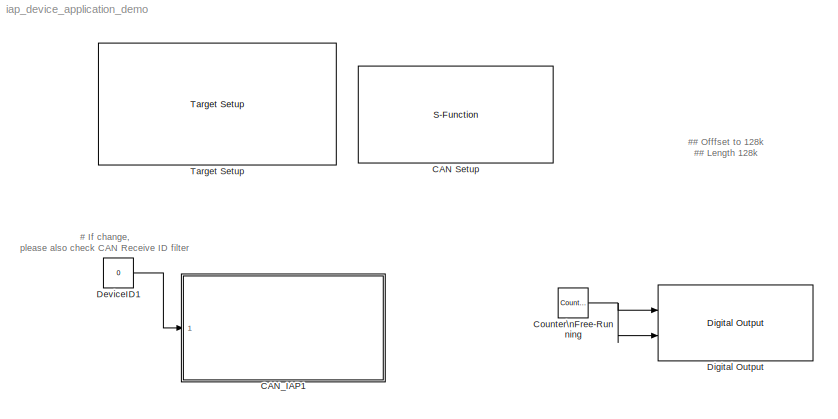
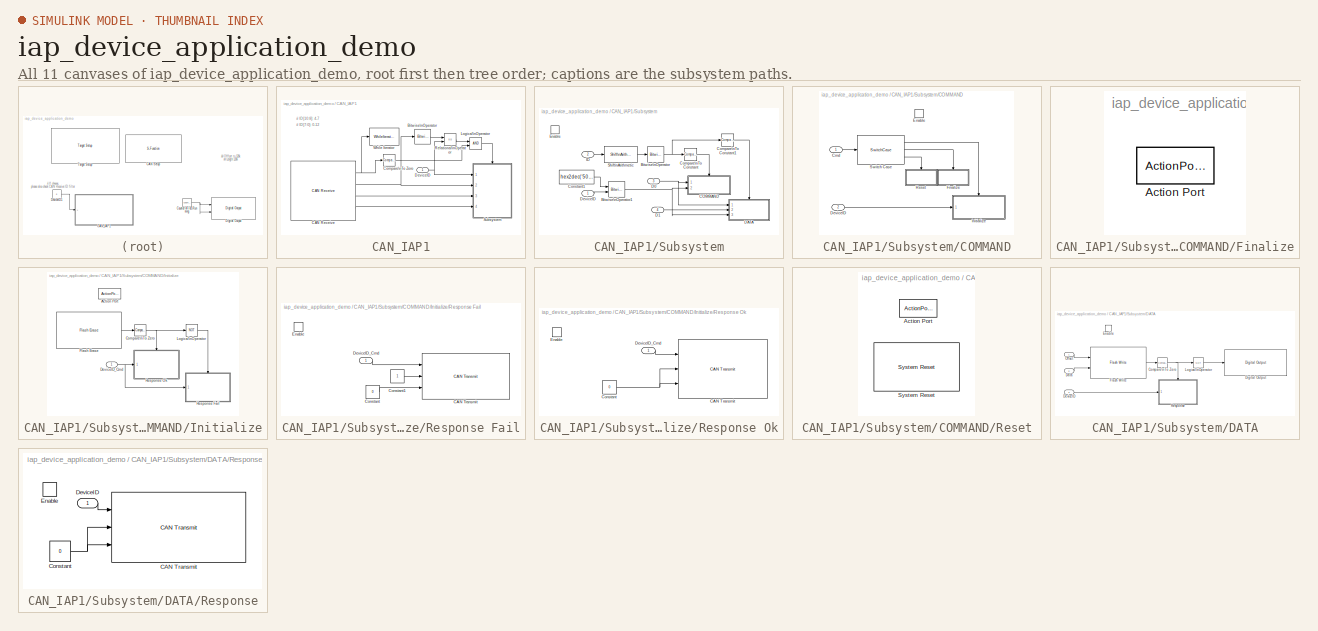
[diagram: thumbnail index - all 11 canvases of the model, root first then tree order]
MODEL iap_device_application_demo
KIND model
CONFIG PreLoadFcn = waijung.modelPreload; % Required for working with Waijung Blockset. Do not remove.
BLOCK [S-Function] CAN Setup
  EnableBusSupport = off
  FunctionName = stm32f4_can
  MaskCallbackString = |stm32f4_can_callback('canmodule');|stm32f4_can_callback('advance');|stm32f4_can_callback('bitrate_select');||stm32f4_can_callback('timingconf');|stm32f4_can_callback('timingconf');|stm32f4_can_callback('timingconf');|stm32f4_can_callback('timingconf');|stm32f4_can_callback('timingconf');||stm32f4_can_callback('remaptxpin');|stm32f4_can_callback('remaprxpin');|stm32f4_can_callback('sampletime');|s...<+82ch>
  MaskDescription = This block setups CAN Module.
  MaskDisplay = text(0.5, 0.5, 'CAN1_Setup\\nSpeed (bps): 125000\\nTx/Rx pin: B9/B8','ver','middle','hor','center');
  MaskEnableString = on,on,on,on,on,on,on,on,on,off,off,on,on,on,off,off,on,on,on,on,on,on,on,on,on,on,on,on
  MaskHelp = web(fullfile(waijungdocroot,'stm32f4_can_setup.htm'), '-browser')
  MaskIconFrame = on
  MaskIconOpaque = on
  MaskIconRotate = none
  MaskIconUnits = normalized
  MaskInitialization = stm32f4_can_callback('init');
  MaskPortRotate = default
  MaskPromptString = Configuration|CAN Module|Advance configuration|Baud rate (bps)|Resync Jump Width (SJW)|Bit segment 1 (BS1) + PROP_SEG|Bit segment 2 (BS2)|Adjust|Baud rate prescaler (BRP)|Baud rate (bps)|Time Quantum (Second), tq|CAN Tx pin|CAN Rx pin|Sample time (sec)|Compiled sample time (sec) in string|BlockID|Input port|Input port label|Output port|Output port label|Compatibility (Reserved for future use)|Conf...<+104ch>
  MaskSelfModifiable = on
  MaskStyleString = popup(Setup),popup(1|2),checkbox,popup(125000|250000|500000|1000000),popup(1tq|2tq|3tq|4tq),popup(1tq|2tq|3tq|4tq|5tq|6tq|7tq|8tq|9tq|10tq|11tq|12tq|13tq|14tq|15tq|16tq),popup(1tq|2tq|3tq|4tq|5tq|6tq|7tq|8tq),popup(Prescaler|Baudrate),edit,edit,edit,popup(Not used|A12|B9|D1|H13),popup(Not used|A11|B8|D0|I9),edit,edit,edit,edit,edit,edit,edit,edit,edit,edit,edit,edit,edit,edit,edit
  MaskTabNameString = ,,,,,,,,,,,,,,,,,,,,,,,,,,,
  MaskToolTipString = on,on,on,on,on,on,on,on,on,on,on,on,on,on,on,on,on,on,on,on,on,on,on,on,on,on,on,on
  MaskTunableValueString = off,off,off,off,off,off,off,off,off,off,off,off,off,off,off,off,off,off,off,off,off,off,off,off,off,off,off,off
  MaskType = stm32f4_can
  MaskValueString = Setup|1|on|125000|1tq|14tq|6tq|Prescaler|16|125000|3.8095e-007|B9|B8|inf|0.001|CANSetup|[]|{}|[]|{}|0|[\"125000\",\"16\",\"B\",\"9\",\"B\",\"8\",\"1tq\",\"14tq\",\"6tq\",\"ENABLE\"]|16|B|9|B|8|1
  MaskVarAliasString = ,,,,,,,,,,,,,,,,,,,,,,,,,,,
  MaskVariables = conf=&1;canmodule=&2;advance=&3;bitrate_select=&4;sjw=&5;bs1=&6;bs2=&7;timingconf=&8;brp=@9;bitrate=@10;tq=&11;remaptxpin=&12;remaprxpin=&13;sampletime=@14;sampletimestr=&15;blockid=&16;inputarray=@17;inputlabelarray=&18;outputarray=@19;outputlabelarray=&20;compat=&21;confstr=&22;presc=&23;txportstr=&24;txpinstr=&25;rxportstr=&26;rxpinstr=&27;lastmodule=&28;
  MaskVisibilityString = off,on,on,off,on,on,on,on,on,on,on,on,on,on,off,off,off,off,off,off,off,off,off,off,off,off,off,off
  Parameters = conf,canmodule,0,inputarray,outputarray,'','',confstr,sampletime,sampletimestr,blockid
  Ports = []
BLOCK [SubSystem] CAN_IAP1
  FunctionWithSeparateData = off
  MaskHideContents = off
  MinAlgLoopOccurrences = off
  Opaque = off
  Ports = [1]
  PropExecContextOutsideSubsystem = off
  RTWSystemCode = Auto
  RequestExecContextInheritance = off
  TreatAsAtomicUnit = on
BLOCK [Reference] CAN_IAP1/Bitwise\nOperator  REF=simulink/Logic and Bit\nOperations/Bitwise\nOperator
  BitMask = 255
  BitMaskRealWorld = Stored Integer
  NumInputPorts = 1
  Ports = [1, 1]
  SourceBlock = simulink/Logic and Bit\nOperations/Bitwise\nOperator
  SourceType = Bitwise Operator
  UseBitMask = on
  logicop = AND
BLOCK [Reference] CAN_IAP1/CAN Receive  REF=stm32f4_canbus_lib/CAN Receive
  Ports = [0, 4]
  SourceBlock = stm32f4_canbus_lib/CAN Receive
  SourceType = stm32f4_can
  blockid = CAN_IAP1CANReceive
  buffersize = 32
  canmodule = 1
  compat = 0
  conf = Rx
  confstr = [\"Standard\",\"Mask\",\"1024\",\"1264\",\"off\",\"uint32\",\"uint32\",\"Not used\",\"Not used\",\"Not used\",\"Not used\",\"Not used\",\"Not used\",\"32\",\"8000\",\"0\",\"9E00\",\"4\"]
  data0type = uint32
  data1type = uint32
  data2type = Not used
  data3type = Not used
  data4type = Not used
  data5type = Not used
  data6type = Not used
  data7type = Not used
  datatype = uint32
  enableisr = off
  filtertype = Mask
  id = hex2dec('400')
  idmask = hex2dec('4F0')
  idtype = Standard
  inputarray = []
  inputlabelarray = {}
  outputarray = [ 5, 7, 7, 7]
  outputlabelarray = { 'Msg Pending','ID', 'D0 (uint32)', 'D1 (uint32)' }
  sampletime = -1
  sampletimestr = -1
  usedlc = off
BLOCK [Reference] CAN_IAP1/Compare\nTo Zero  REF=simulink/Logic and Bit\nOperations/Compare\nTo Zero
  FunctionWithSeparateData = off
  LogicOutDataTypeMode = uint8
  Ports = [1, 1]
  RTWMemSecDataConstants = Inherit from model
  RTWMemSecDataInternal = Inherit from model
  RTWMemSecDataParameters = Inherit from model
  RTWMemSecFuncExecute = Inherit from model
  RTWMemSecFuncInitTerm = Inherit from model
  ShowPortLabels = FromPortIcon
  SourceBlock = simulink/Logic and Bit\nOperations/Compare\nTo Zero
  SourceType = Compare To Zero
  SystemSampleTime = -1
  ZeroCross = off
  relop = >
BLOCK [Inport] CAN_IAP1/DeviceID
  IconDisplay = Port number
  OutDataType = fixdt(1, 16)
  OutScaling = 2^0
BLOCK [Logic] CAN_IAP1/Logical\nOperator
  AllPortsSameDT = off
  LogicDataType = fixdt(0, 8)
  OutDataTypeMode = boolean
  OutDataTypeStr = boolean
  Ports = [2, 1]
BLOCK [RelationalOperator] CAN_IAP1/Relational\nOperator
  InputSameDT = off
  LogicDataType = fixdt(0, 8)
  LogicOutDataTypeMode = boolean
  Operator = ==
  OutDataTypeStr = boolean
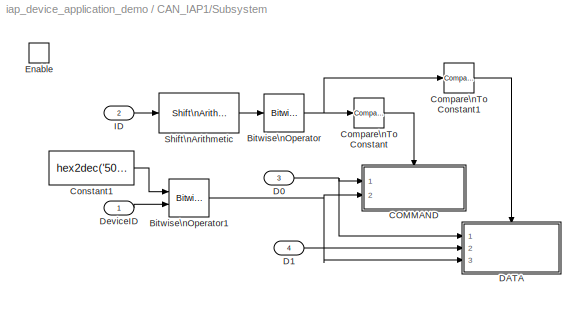
BLOCK [SubSystem] CAN_IAP1/Subsystem
  FunctionWithSeparateData = off
  MaskHideContents = off
  MinAlgLoopOccurrences = off
  Opaque = off
  Ports = [4, 0, 1]
  PropExecContextOutsideSubsystem = off
  RTWSystemCode = Auto
  RequestExecContextInheritance = off
BLOCK [Reference] CAN_IAP1/Subsystem/Bitwise\nOperator  REF=simulink/Logic and Bit\nOperations/Bitwise\nOperator
  BitMask = 3
  BitMaskRealWorld = Stored Integer
  NumInputPorts = 1
  Ports = [1, 1]
  SourceBlock = simulink/Logic and Bit\nOperations/Bitwise\nOperator
  SourceType = Bitwise Operator
  UseBitMask = on
  logicop = AND
BLOCK [Reference] CAN_IAP1/Subsystem/Bitwise\nOperator1  REF=simulink/Logic and Bit\nOperations/Bitwise\nOperator
  BitMask = bin2dec('11011001')
  BitMaskRealWorld = Stored Integer
  NumInputPorts = 2
  Ports = [2, 1]
  SourceBlock = simulink/Logic and Bit\nOperations/Bitwise\nOperator
  SourceType = Bitwise Operator
  UseBitMask = off
  logicop = OR
BLOCK [SubSystem] CAN_IAP1/Subsystem/COMMAND
  FunctionWithSeparateData = off
  MaskHideContents = off
  MinAlgLoopOccurrences = off
  Opaque = off
  Ports = [2, 0, 1]
  PropExecContextOutsideSubsystem = off
  RTWSystemCode = Auto
  RequestExecContextInheritance = off
  TreatAsAtomicUnit = on
BLOCK [Inport] CAN_IAP1/Subsystem/COMMAND/Cmd
  IconDisplay = Port number
  OutDataType = fixdt(1, 16)
  OutScaling = 2^0
BLOCK [Inport] CAN_IAP1/Subsystem/COMMAND/DeviceID
  IconDisplay = Port number
  OutDataType = fixdt(1, 16)
  OutScaling = 2^0
  Port = 2
BLOCK [EnablePort] CAN_IAP1/Subsystem/COMMAND/Enable
  Ports = []
BLOCK [SubSystem] CAN_IAP1/Subsystem/COMMAND/Finalize
  FunctionWithSeparateData = off
  MaskHideContents = off
  MinAlgLoopOccurrences = off
  Opaque = off
  Ports = [0, 0, 0, 0, 0, 0, 0, 1]
  PropExecContextOutsideSubsystem = off
  RTWSystemCode = Auto
  RequestExecContextInheritance = off
  TreatAsAtomicUnit = on
BLOCK [ActionPort] CAN_IAP1/Subsystem/COMMAND/Finalize/Action Port
  ActionType = case
BLOCK [SubSystem] CAN_IAP1/Subsystem/COMMAND/Initialize
  FunctionWithSeparateData = off
  MaskHideContents = off
  MinAlgLoopOccurrences = off
  Opaque = off
  Ports = [1, 0, 0, 0, 0, 0, 0, 1]
  PropExecContextOutsideSubsystem = off
  RTWSystemCode = Auto
  RequestExecContextInheritance = off
  TreatAsAtomicUnit = on
BLOCK [ActionPort] CAN_IAP1/Subsystem/COMMAND/Initialize/Action Port
  ActionType = case
BLOCK [Reference] CAN_IAP1/Subsystem/COMMAND/Initialize/Compare\nTo Zero  REF=simulink/Logic and Bit\nOperations/Compare\nTo Zero
  FunctionWithSeparateData = off
  LogicOutDataTypeMode = uint8
  Ports = [1, 1]
  RTWMemSecDataConstants = Inherit from model
  RTWMemSecDataInternal = Inherit from model
  RTWMemSecDataParameters = Inherit from model
  RTWMemSecFuncExecute = Inherit from model
  RTWMemSecFuncInitTerm = Inherit from model
  ShowPortLabels = FromPortIcon
  SourceBlock = simulink/Logic and Bit\nOperations/Compare\nTo Zero
  SourceType = Compare To Zero
  SystemSampleTime = -1
  ZeroCross = off
  relop = ==
BLOCK [Inport] CAN_IAP1/Subsystem/COMMAND/Initialize/DeviceID_Cmd
  IconDisplay = Port number
  OutDataType = fixdt(1, 16)
  OutScaling = 2^0
BLOCK [Reference] CAN_IAP1/Subsystem/COMMAND/Initialize/Flash Erase  REF=stm32f4_flash_lib/Flash Erase
  Ports = [0, 1]
  SourceBlock = stm32f4_flash_lib/Flash Erase
  SourceType = stm32f4_flash
  blockid = CAN_IAP1SubsystemCOMMANDInitializeFlashErase
  compat = 0
  conf = Erase
  confstr = [\"Blocking\",\"on\",\"08040000\",\"6\"]
  datacount = 1
  datatype = uint32
  enablestatus = on
  flashsector = Sector 6: 0x08040000 - 0x0805FFFF
  inputarray = []
  inputlabelarray = {}
  outputarray = [3]
  outputlabelarray = {'Status'}
  sampletime = -1
  sampletimestr = -1
  transfer = Blocking
BLOCK [Logic] CAN_IAP1/Subsystem/COMMAND/Initialize/Logical\nOperator
  AllPortsSameDT = off
  LogicDataType = fixdt(0, 8)
  Operator = NOT
  OutDataTypeMode = boolean
  OutDataTypeStr = boolean
  Ports = [1, 1]
BLOCK [SubSystem] CAN_IAP1/Subsystem/COMMAND/Initialize/Response Fail
  FunctionWithSeparateData = off
  MaskHideContents = off
  MinAlgLoopOccurrences = off
  Opaque = off
  Ports = [1, 0, 1]
  PropExecContextOutsideSubsystem = off
  RTWSystemCode = Auto
  RequestExecContextInheritance = off
BLOCK [Reference] CAN_IAP1/Subsystem/COMMAND/Initialize/Response Fail/CAN Transmit  REF=stm32f4_canbus_lib/CAN Transmit
  Ports = [3]
  SourceBlock = stm32f4_canbus_lib/CAN Transmit
  SourceType = stm32f4_can
  blockid = CAN_IAP1SubsystemCOMMANDInitializeResponseFailCANTransmit
  canmodule = 1
  compat = 0
  conf = Tx
  confstr = [\"Blocking\",\"0.001\",\"Standard\",\"off\",\"1024\",\"on\",\"8\",\"off\",\"uint32\",\"uint32\",\"Not used\",\"Not used\",\"Not used\",\"Not used\",\"Not used\",\"Not used\"]
  data0type = uint32
  data1type = uint32
  data2type = Not used
  data3type = Not used
  data4type = Not used
  data5type = Not used
  data6type = Not used
  data7type = Not used
  datatype = uint32
  dlc = 8
  enablestatus = off
  id = hex2dec('400')
  idtype = Standard
  inputarray = [ -1, 7, 7]
  inputlabelarray = { 'ID', 'D0 (uint32)', 'D1 (uint32)' }
  outputarray = []
  outputlabelarray = {}
  sampletime = -1
  sampletimestr = -1
  specificdlc = on
  specificid = off
  timeout = 0.001
  transfer = Blocking
BLOCK [Constant] CAN_IAP1/Subsystem/COMMAND/Initialize/Response Fail/Constant
  OutDataType = fixdt(1, 16)
  OutDataTypeMode = uint32
  OutDataTypeStr = uint32
  OutScaling = 2^0
  Value = 0
BLOCK [Constant] CAN_IAP1/Subsystem/COMMAND/Initialize/Response Fail/Constant1
  OutDataType = fixdt(1, 16)
  OutDataTypeMode = uint32
  OutDataTypeStr = uint32
  OutScaling = 2^0
BLOCK [Inport] CAN_IAP1/Subsystem/COMMAND/Initialize/Response Fail/DeviceID_Cmd
  IconDisplay = Port number
  OutDataType = fixdt(1, 16)
  OutScaling = 2^0
BLOCK [EnablePort] CAN_IAP1/Subsystem/COMMAND/Initialize/Response Fail/Enable
  Ports = []
BLOCK [SubSystem] CAN_IAP1/Subsystem/COMMAND/Initialize/Response Ok
  FunctionWithSeparateData = off
  MaskHideContents = off
  MinAlgLoopOccurrences = off
  Opaque = off
  Ports = [1, 0, 1]
  PropExecContextOutsideSubsystem = off
  RTWSystemCode = Auto
  RequestExecContextInheritance = off
BLOCK [Reference] CAN_IAP1/Subsystem/COMMAND/Initialize/Response Ok/CAN Transmit  REF=stm32f4_canbus_lib/CAN Transmit
  Ports = [3]
  SourceBlock = stm32f4_canbus_lib/CAN Transmit
  SourceType = stm32f4_can
  blockid = CAN_IAP1SubsystemCOMMANDInitializeResponseOkCANTransmit
  canmodule = 1
  compat = 0
  conf = Tx
  confstr = [\"Blocking\",\"0.001\",\"Standard\",\"off\",\"1024\",\"on\",\"8\",\"off\",\"uint32\",\"uint32\",\"Not used\",\"Not used\",\"Not used\",\"Not used\",\"Not used\",\"Not used\"]
  data0type = uint32
  data1type = uint32
  data2type = Not used
  data3type = Not used
  data4type = Not used
  data5type = Not used
  data6type = Not used
  data7type = Not used
  datatype = uint32
  dlc = 8
  enablestatus = off
  id = hex2dec('400')
  idtype = Standard
  inputarray = [ -1, 7, 7]
  inputlabelarray = { 'ID', 'D0 (uint32)', 'D1 (uint32)' }
  outputarray = []
  outputlabelarray = {}
  sampletime = -1
  sampletimestr = -1
  specificdlc = on
  specificid = off
  timeout = 0.001
  transfer = Blocking
BLOCK [Constant] CAN_IAP1/Subsystem/COMMAND/Initialize/Response Ok/Constant
  OutDataType = fixdt(1, 16)
  OutDataTypeMode = uint32
  OutDataTypeStr = uint32
  OutScaling = 2^0
  Value = 0
BLOCK [Inport] CAN_IAP1/Subsystem/COMMAND/Initialize/Response Ok/DeviceID_Cmd
  IconDisplay = Port number
  OutDataType = fixdt(1, 16)
  OutScaling = 2^0
BLOCK [EnablePort] CAN_IAP1/Subsystem/COMMAND/Initialize/Response Ok/Enable
  Ports = []
BLOCK [SubSystem] CAN_IAP1/Subsystem/COMMAND/Reset
  FunctionWithSeparateData = off
  MaskHideContents = off
  MinAlgLoopOccurrences = off
  Opaque = off
  Ports = [0, 0, 0, 0, 0, 0, 0, 1]
  PropExecContextOutsideSubsystem = off
  RTWSystemCode = Auto
  RequestExecContextInheritance = off
  TreatAsAtomicUnit = on
BLOCK [ActionPort] CAN_IAP1/Subsystem/COMMAND/Reset/Action Port
  ActionType = case
BLOCK [Reference] CAN_IAP1/Subsystem/COMMAND/Reset/System Reset  REF=stm32f4_reset_lib/System Reset
  Ports = []
  SourceBlock = stm32f4_reset_lib/System Reset
  SourceType = stm32f4_reset
  blockid = CAN_IAP1SubsystemCOMMANDResetSystemReset
  compat = 0
  conf = <empty>
  confstr = [\"Param1\",\"Param1\"]
  inputarray = []
  inputlabelarray = {}
  outputarray = []
  outputlabelarray = {}
  sampletime = inf
  sampletimestr = -1
BLOCK [SwitchCase] CAN_IAP1/Subsystem/COMMAND/Switch Case
  CaseConditions = {0,1,2}
  CaseShowDefault = off
  Ports = [1, 3]
BLOCK [Reference] CAN_IAP1/Subsystem/Compare\nTo Constant  REF=simulink/Logic and Bit\nOperations/Compare\nTo Constant
  FunctionWithSeparateData = off
  LogicOutDataTypeMode = uint8
  Ports = [1, 1]
  RTWMemSecDataConstants = Inherit from model
  RTWMemSecDataInternal = Inherit from model
  RTWMemSecDataParameters = Inherit from model
  RTWMemSecFuncExecute = Inherit from model
  RTWMemSecFuncInitTerm = Inherit from model
  ShowPortLabels = FromPortIcon
  SourceBlock = simulink/Logic and Bit\nOperations/Compare\nTo Constant
  SourceType = Compare To Constant
  SystemSampleTime = -1
  ZeroCross = off
  const = 0
  relop = ==
BLOCK [Reference] CAN_IAP1/Subsystem/Compare\nTo Constant1  REF=simulink/Logic and Bit\nOperations/Compare\nTo Constant
  FunctionWithSeparateData = off
  LogicOutDataTypeMode = uint8
  Ports = [1, 1]
  RTWMemSecDataConstants = Inherit from model
  RTWMemSecDataInternal = Inherit from model
  RTWMemSecDataParameters = Inherit from model
  RTWMemSecFuncExecute = Inherit from model
  RTWMemSecFuncInitTerm = Inherit from model
  ShowPortLabels = FromPortIcon
  SourceBlock = simulink/Logic and Bit\nOperations/Compare\nTo Constant
  SourceType = Compare To Constant
  SystemSampleTime = -1
  ZeroCross = off
  const = 2
  relop = ==
BLOCK [Constant] CAN_IAP1/Subsystem/Constant1
  OutDataType = fixdt(1, 16)
  OutDataTypeMode = uint32
  OutDataTypeStr = uint32
  OutScaling = 2^0
  Value = hex2dec('500')
BLOCK [Inport] CAN_IAP1/Subsystem/D0
  IconDisplay = Port number
  Port = 3
BLOCK [Inport] CAN_IAP1/Subsystem/D1
  IconDisplay = Port number
  Port = 4
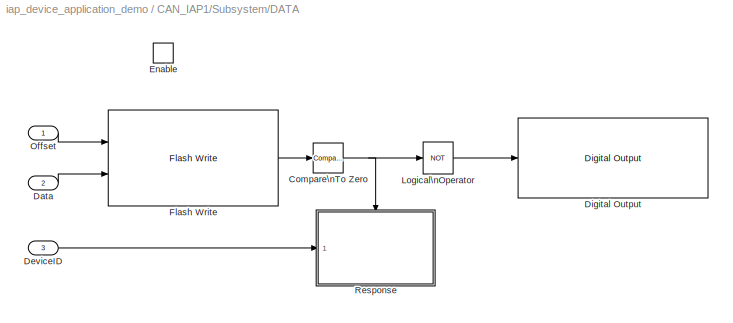
BLOCK [SubSystem] CAN_IAP1/Subsystem/DATA
  FunctionWithSeparateData = off
  MaskHideContents = off
  MinAlgLoopOccurrences = off
  Opaque = off
  Ports = [3, 0, 1]
  PropExecContextOutsideSubsystem = off
  RTWSystemCode = Auto
  RequestExecContextInheritance = off
  TreatAsAtomicUnit = on
BLOCK [Reference] CAN_IAP1/Subsystem/DATA/Compare\nTo Zero  REF=simulink/Logic and Bit\nOperations/Compare\nTo Zero
  FunctionWithSeparateData = off
  LogicOutDataTypeMode = uint8
  Ports = [1, 1]
  RTWMemSecDataConstants = Inherit from model
  RTWMemSecDataInternal = Inherit from model
  RTWMemSecDataParameters = Inherit from model
  RTWMemSecFuncExecute = Inherit from model
  RTWMemSecFuncInitTerm = Inherit from model
  ShowPortLabels = FromPortIcon
  SourceBlock = simulink/Logic and Bit\nOperations/Compare\nTo Zero
  SourceType = Compare To Zero
  SystemSampleTime = -1
  ZeroCross = off
  relop = ==
BLOCK [Inport] CAN_IAP1/Subsystem/DATA/Data
  IconDisplay = Port number
  OutDataType = fixdt(1, 16)
  OutScaling = 2^0
  Port = 2
BLOCK [Inport] CAN_IAP1/Subsystem/DATA/DeviceID
  IconDisplay = Port number
  OutDataType = fixdt(1, 16)
  OutScaling = 2^0
  Port = 3
BLOCK [Reference] CAN_IAP1/Subsystem/DATA/Digital Output  REF=stm32f4_io_lib/Digital Output
  Ports = [1]
  SourceBlock = stm32f4_io_lib/Digital Output
  SourceType = stm32f4_digital_output
  bitbandingstr = \n#define CAN_IAP1SubsystemDATADigitalOutput_D14 Peripheral_BB(GPIOD->ODR, 14)  /* Output pin */
  blockid = CAN_IAP1SubsystemDATADigitalOutput
  cinputportlabel = In1, In2
  coutputportlabel = 0
  enablecustomportlabel = off
  globalinit = off
  pinstr = GPIO_Pin_14
  port = D
  porttype = Push Pull
  porttypestr = PP
  sampletime = -1
  sampletimestr = -1
  speed = 100
  use_bitband = on
  use_pin0 = off
  use_pin1 = off
  use_pin10 = off
  use_pin11 = off
  use_pin12 = off
  use_pin13 = off
  use_pin14 = on
  use_pin15 = off
  use_pin2 = off
  use_pin3 = off
  use_pin4 = off
  use_pin5 = off
  use_pin6 = off
  use_pin7 = off
  use_pin8 = off
  use_pin9 = off
  usedpinarray = [0  0  0  0  0  0  0  0  0  0  0  0  0  0  1  0]
BLOCK [EnablePort] CAN_IAP1/Subsystem/DATA/Enable
  Ports = []
BLOCK [Reference] CAN_IAP1/Subsystem/DATA/Flash Write  REF=stm32f4_flash_lib/Flash Write
  Ports = [2, 1]
  SourceBlock = stm32f4_flash_lib/Flash Write
  SourceType = stm32f4_flash
  blockid = CAN_IAP1SubsystemDATAFlashWrite
  compat = 0
  conf = Program
  confstr = [\"Blocking\",\"uint32\",\"on\",\"20000\",\"08040000\",\"6\"]
  datacount = 1
  datatype = uint32
  enablestatus = on
  flashsector = Sector 6: 0x08040000 - 0x0805FFFF
  inputarray = [-1,7]
  inputlabelarray = {'Offset ', 'Data (uint32)'}
  outputarray = [3]
  outputlabelarray = {'Status'}
  sampletime = -1
  sampletimestr = -1
  transfer = Blocking
BLOCK [Logic] CAN_IAP1/Subsystem/DATA/Logical\nOperator
  AllPortsSameDT = off
  LogicDataType = fixdt(0, 8)
  Operator = NOT
  OutDataTypeMode = boolean
  OutDataTypeStr = boolean
  Ports = [1, 1]
BLOCK [Inport] CAN_IAP1/Subsystem/DATA/Offset
  IconDisplay = Port number
  OutDataType = fixdt(1, 16)
  OutScaling = 2^0
BLOCK [SubSystem] CAN_IAP1/Subsystem/DATA/Response
  FunctionWithSeparateData = off
  MaskHideContents = off
  MinAlgLoopOccurrences = off
  Opaque = off
  Ports = [1, 0, 1]
  PropExecContextOutsideSubsystem = off
  RTWSystemCode = Auto
  RequestExecContextInheritance = off
BLOCK [Reference] CAN_IAP1/Subsystem/DATA/Response/CAN Transmit  REF=stm32f4_canbus_lib/CAN Transmit
  Ports = [3]
  SourceBlock = stm32f4_canbus_lib/CAN Transmit
  SourceType = stm32f4_can
  blockid = CAN_IAP1SubsystemDATAResponseCANTransmit
  canmodule = 1
  compat = 0
  conf = Tx
  confstr = [\"Blocking\",\"0.001\",\"Standard\",\"off\",\"1024\",\"on\",\"8\",\"off\",\"uint32\",\"uint32\",\"Not used\",\"Not used\",\"Not used\",\"Not used\",\"Not used\",\"Not used\"]
  data0type = uint32
  data1type = uint32
  data2type = Not used
  data3type = Not used
  data4type = Not used
  data5type = Not used
  data6type = Not used
  data7type = Not used
  datatype = uint32
  dlc = 8
  enablestatus = off
  id = hex2dec('400')
  idtype = Standard
  inputarray = [ -1, 7, 7]
  inputlabelarray = { 'ID', 'D0 (uint32)', 'D1 (uint32)' }
  outputarray = []
  outputlabelarray = {}
  sampletime = -1
  sampletimestr = -1
  specificdlc = on
  specificid = off
  timeout = 0.001
  transfer = Blocking
BLOCK [Constant] CAN_IAP1/Subsystem/DATA/Response/Constant
  OutDataType = fixdt(1, 16)
  OutDataTypeMode = uint32
  OutDataTypeStr = uint32
  OutScaling = 2^0
  Value = 0
BLOCK [Inport] CAN_IAP1/Subsystem/DATA/Response/DeviceID
  IconDisplay = Port number
  OutDataType = fixdt(1, 16)
  OutScaling = 2^0
BLOCK [EnablePort] CAN_IAP1/Subsystem/DATA/Response/Enable
  Ports = []
BLOCK [Inport] CAN_IAP1/Subsystem/DeviceID
  IconDisplay = Port number
BLOCK [EnablePort] CAN_IAP1/Subsystem/Enable
  Ports = []
BLOCK [Inport] CAN_IAP1/Subsystem/ID
  IconDisplay = Port number
  Port = 2
BLOCK [Reference] CAN_IAP1/Subsystem/Shift\nArithmetic  REF=simulink/Logic and Bit\nOperations/Shift\nArithmetic
  FunctionWithSeparateData = off
  Ports = [1, 1]
  RTWMemSecDataConstants = Inherit from model
  RTWMemSecDataInternal = Inherit from model
  RTWMemSecDataParameters = Inherit from model
  RTWMemSecFuncExecute = Inherit from model
  RTWMemSecFuncInitTerm = Inherit from model
  ShowPortLabels = FromPortIcon
  SourceBlock = simulink/Logic and Bit\nOperations/Shift\nArithmetic
  SourceType = Shift Arithmetic
  SystemSampleTime = -1
  nBinPtShiftRight = 0
  nBitShiftRight = 8
BLOCK [WhileIterator] CAN_IAP1/While Iterator
  Ports = [1]
  WhileBlockType = do-while
BLOCK [Reference] Counter\nFree-Running  REF=simulink/Sources/Counter\nFree-Running
  FunctionWithSeparateData = off
  NumBits = 16
  Ports = [0, 1]
  RTWMemSecDataConstants = Inherit from model
  RTWMemSecDataInternal = Inherit from model
  RTWMemSecDataParameters = Inherit from model
  RTWMemSecFuncExecute = Inherit from model
  RTWMemSecFuncInitTerm = Inherit from model
  ShowPortLabels = FromPortIcon
  SourceBlock = simulink/Sources/Counter\nFree-Running
  SourceType = Counter Free-Running
  SystemSampleTime = -1
  tsamp = 0.1
BLOCK [Constant] DeviceID1
  OutDataType = fixdt(1, 16)
  OutDataTypeMode = uint32
  OutDataTypeStr = uint32
  OutScaling = 2^0
  SampleTime = 0.001
  Value = 0
BLOCK [Reference] Digital Output  REF=stm32f4_io_lib/Digital Output
  Ports = [2]
  SourceBlock = stm32f4_io_lib/Digital Output
  SourceType = stm32f4_digital_output
  bitbandingstr = \n#define DigitalOutput_D12 Peripheral_BB(GPIOD->ODR, 12)  /* Output pin */\n#define DigitalOutput_D13 Peripheral_BB(GPIOD->ODR, 13)  /* Output pin */
  blockid = DigitalOutput
  cinputportlabel = In1, In2
  coutputportlabel = 0
  enablecustomportlabel = off
  globalinit = off
  pinstr = GPIO_Pin_12 | GPIO_Pin_13
  port = D
  porttype = Push Pull
  porttypestr = PP
  sampletime = -1
  sampletimestr = 0.1
  speed = 100
  use_bitband = on
  use_pin0 = off
  use_pin1 = off
  use_pin10 = off
  use_pin11 = off
  use_pin12 = on
  use_pin13 = on
  use_pin14 = off
  use_pin15 = off
  use_pin2 = off
  use_pin3 = off
  use_pin4 = off
  use_pin5 = off
  use_pin6 = off
  use_pin7 = off
  use_pin8 = off
  use_pin9 = off
  usedpinarray = [0  0  0  0  0  0  0  0  0  0  0  0  1  1  0  0]
BLOCK [Reference] Target Setup  REF=stm32f4_device_config_lib/Target Setup
  Ports = []
  Priority = 100
  SourceBlock = stm32f4_device_config_lib/Target Setup
  SourceType = stm32f4_target_setup
  assemblercontrolstr = $(patsubst %, -I%, .) -mcpu=cortex-m4 -mthumb -mthumb-interwork -mfloat-abi=hard -mfpu=fpv4-sp-d16 -ffast-math -Wall -Wextra -Ofast -Wa,-amhls=$(<:.s=.lst) -D__STACK_SIZE=$(STACK_SIZE) -D__HEAP_SIZE=$(HEAP_SIZE)
  blockid = TargetSetup
  clockconfig = HSEOSC-8MHz
  compiler = GNU ARM
  compilercontrolstr = $(patsubst %, -I%, .) -mcpu=cortex-m4 -mthumb -mthumb-interwork -mfloat-abi=hard -mfpu=fpv4-sp-d16 -ffast-math -Wall -Wextra -Ofast
  editctrlstr = on
  enableautocompiledownload = on
  execprofile = None
  flashlength = 1024k
  flashorigin = 0x8000000
  fullchiperase = off
  hclk = 168000000
  heapsize = 0x2000
  hseval = 8000000
  lastprofileruart = 3
  linkercontrolstr = -T$(LD_SCRIPT) -g -Wl,-Map=$(MAP),--cref,--no-warn-mismatch -mcpu=cortex-m4 -mthumb -mthumb-interwork -mfloat-abi=hard -mfpu=fpv4-sp-d16 -specs=nosys.specs
  manualsetsampletime = off
  mcu = STM32F417IG (LQFP176)
  mcustr = STM32F417IG
  previous_compiler = GNU ARM
  profilerbaud = 500000
  profilerinitstr = 0.001,168000000,168000,500000,0
  profilertxpin = D8
  profileruart = 3
  programmerinterface = None
  ramlength = 128k
  ramorigin = 0x20000000
  runafterdownload = on
  sampletime = 0.001
  showmemoryconfiguration = off
  stacksize = 0x2000
  system_stm32f4xx_c_path = <path>
  systickreloadvalue = 168000
  useextram = off
ANNOTATION (root): # If change, \nplease also check CAN Receive ID filter
ANNOTATION (root): ## Offfset to 128k\n## Length 128k
ANNOTATION CAN_IAP1: # ID[10:8]: 4-7
ANNOTATION CAN_IAP1: # ID[7:0]: 0-12
LINE CAN_IAP1/Bitwise\nOperator:1 -> CAN_IAP1/Relational\nOperator:1
NET CAN_IAP1/CAN Receive:1 -> CAN_IAP1/Compare\nTo Zero:1, CAN_IAP1/While Iterator:1
NET CAN_IAP1/CAN Receive:2 -> CAN_IAP1/Bitwise\nOperator:1, CAN_IAP1/Subsystem:2
LINE CAN_IAP1/CAN Receive:3 -> CAN_IAP1/Subsystem:3
LINE CAN_IAP1/CAN Receive:4 -> CAN_IAP1/Subsystem:4
LINE CAN_IAP1/Compare\nTo Zero:1 -> CAN_IAP1/Logical\nOperator:2
NET CAN_IAP1/DeviceID:1 -> CAN_IAP1/Relational\nOperator:2, CAN_IAP1/Subsystem:1
LINE CAN_IAP1/Logical\nOperator:1 -> CAN_IAP1/Subsystem:enable
LINE CAN_IAP1/Relational\nOperator:1 -> CAN_IAP1/Logical\nOperator:1
NET CAN_IAP1/Subsystem/Bitwise\nOperator1:1 -> CAN_IAP1/Subsystem/COMMAND:2, CAN_IAP1/Subsystem/DATA:3
NET CAN_IAP1/Subsystem/Bitwise\nOperator:1 -> CAN_IAP1/Subsystem/Compare\nTo Constant1:1, CAN_IAP1/Subsystem/Compare\nTo Constant:1
LINE CAN_IAP1/Subsystem/COMMAND/Cmd:1 -> CAN_IAP1/Subsystem/COMMAND/Switch Case:1
LINE CAN_IAP1/Subsystem/COMMAND/DeviceID:1 -> CAN_IAP1/Subsystem/COMMAND/Initialize:1
NET CAN_IAP1/Subsystem/COMMAND/Initialize/Compare\nTo Zero:1 -> CAN_IAP1/Subsystem/COMMAND/Initialize/Logical\nOperator:1, CAN_IAP1/Subsystem/COMMAND/Initialize/Response Ok:enable
NET CAN_IAP1/Subsystem/COMMAND/Initialize/DeviceID_Cmd:1 -> CAN_IAP1/Subsystem/COMMAND/Initialize/Response Fail:1, CAN_IAP1/Subsystem/COMMAND/Initialize/Response Ok:1
LINE CAN_IAP1/Subsystem/COMMAND/Initialize/Flash Erase:1 -> CAN_IAP1/Subsystem/COMMAND/Initialize/Compare\nTo Zero:1
LINE CAN_IAP1/Subsystem/COMMAND/Initialize/Logical\nOperator:1 -> CAN_IAP1/Subsystem/COMMAND/Initialize/Response Fail:enable
LINE CAN_IAP1/Subsystem/COMMAND/Initialize/Response Fail/Constant1:1 -> CAN_IAP1/Subsystem/COMMAND/Initialize/Response Fail/CAN Transmit:2
LINE CAN_IAP1/Subsystem/COMMAND/Initialize/Response Fail/Constant:1 -> CAN_IAP1/Subsystem/COMMAND/Initialize/Response Fail/CAN Transmit:3
LINE CAN_IAP1/Subsystem/COMMAND/Initialize/Response Fail/DeviceID_Cmd:1 -> CAN_IAP1/Subsystem/COMMAND/Initialize/Response Fail/CAN Transmit:1
NET CAN_IAP1/Subsystem/COMMAND/Initialize/Response Ok/Constant:1 -> CAN_IAP1/Subsystem/COMMAND/Initialize/Response Ok/CAN Transmit:2, CAN_IAP1/Subsystem/COMMAND/Initialize/Response Ok/CAN Transmit:3
LINE CAN_IAP1/Subsystem/COMMAND/Initialize/Response Ok/DeviceID_Cmd:1 -> CAN_IAP1/Subsystem/COMMAND/Initialize/Response Ok/CAN Transmit:1
LINE CAN_IAP1/Subsystem/COMMAND/Switch Case:1 -> CAN_IAP1/Subsystem/COMMAND/Initialize:ifaction
LINE CAN_IAP1/Subsystem/COMMAND/Switch Case:2 -> CAN_IAP1/Subsystem/COMMAND/Finalize:ifaction
LINE CAN_IAP1/Subsystem/COMMAND/Switch Case:3 -> CAN_IAP1/Subsystem/COMMAND/Reset:ifaction
LINE CAN_IAP1/Subsystem/Compare\nTo Constant1:1 -> CAN_IAP1/Subsystem/DATA:enable
LINE CAN_IAP1/Subsystem/Compare\nTo Constant:1 -> CAN_IAP1/Subsystem/COMMAND:enable
LINE CAN_IAP1/Subsystem/Constant1:1 -> CAN_IAP1/Subsystem/Bitwise\nOperator1:1
NET CAN_IAP1/Subsystem/D0:1 -> CAN_IAP1/Subsystem/COMMAND:1, CAN_IAP1/Subsystem/DATA:1
LINE CAN_IAP1/Subsystem/D1:1 -> CAN_IAP1/Subsystem/DATA:2
NET CAN_IAP1/Subsystem/DATA/Compare\nTo Zero:1 -> CAN_IAP1/Subsystem/DATA/Logical\nOperator:1, CAN_IAP1/Subsystem/DATA/Response:enable
LINE CAN_IAP1/Subsystem/DATA/Data:1 -> CAN_IAP1/Subsystem/DATA/Flash Write:2
LINE CAN_IAP1/Subsystem/DATA/DeviceID:1 -> CAN_IAP1/Subsystem/DATA/Response:1
LINE CAN_IAP1/Subsystem/DATA/Flash Write:1 -> CAN_IAP1/Subsystem/DATA/Compare\nTo Zero:1
LINE CAN_IAP1/Subsystem/DATA/Logical\nOperator:1 -> CAN_IAP1/Subsystem/DATA/Digital Output:1
LINE CAN_IAP1/Subsystem/DATA/Offset:1 -> CAN_IAP1/Subsystem/DATA/Flash Write:1
NET CAN_IAP1/Subsystem/DATA/Response/Constant:1 -> CAN_IAP1/Subsystem/DATA/Response/CAN Transmit:2, CAN_IAP1/Subsystem/DATA/Response/CAN Transmit:3
LINE CAN_IAP1/Subsystem/DATA/Response/DeviceID:1 -> CAN_IAP1/Subsystem/DATA/Response/CAN Transmit:1
LINE CAN_IAP1/Subsystem/DeviceID:1 -> CAN_IAP1/Subsystem/Bitwise\nOperator1:2
LINE CAN_IAP1/Subsystem/ID:1 -> CAN_IAP1/Subsystem/Shift\nArithmetic:1
LINE CAN_IAP1/Subsystem/Shift\nArithmetic:1 -> CAN_IAP1/Subsystem/Bitwise\nOperator:1
NET Counter\nFree-Running:1 -> Digital Output:1, Digital Output:2
LINE DeviceID1:1 -> CAN_IAP1:1
note: NET lines group one-source signal fan-out (src -> all destinations, sorted); 1:1 wires keep LINE
note: 1 file-system path scrubbed to <path> (not preserved elsewhere — flat text is the only slx artifact)
